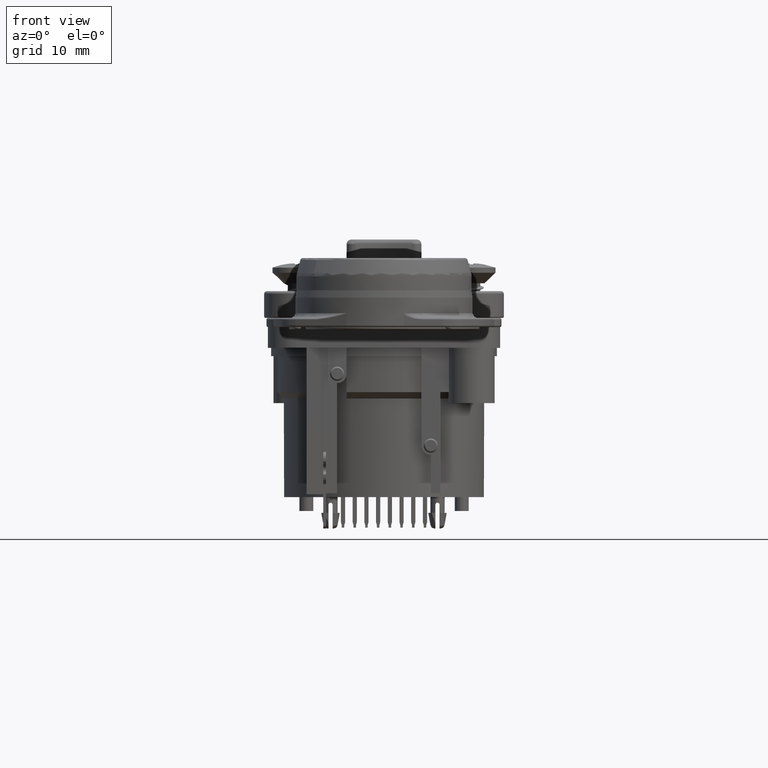
[diagram: clean part render]
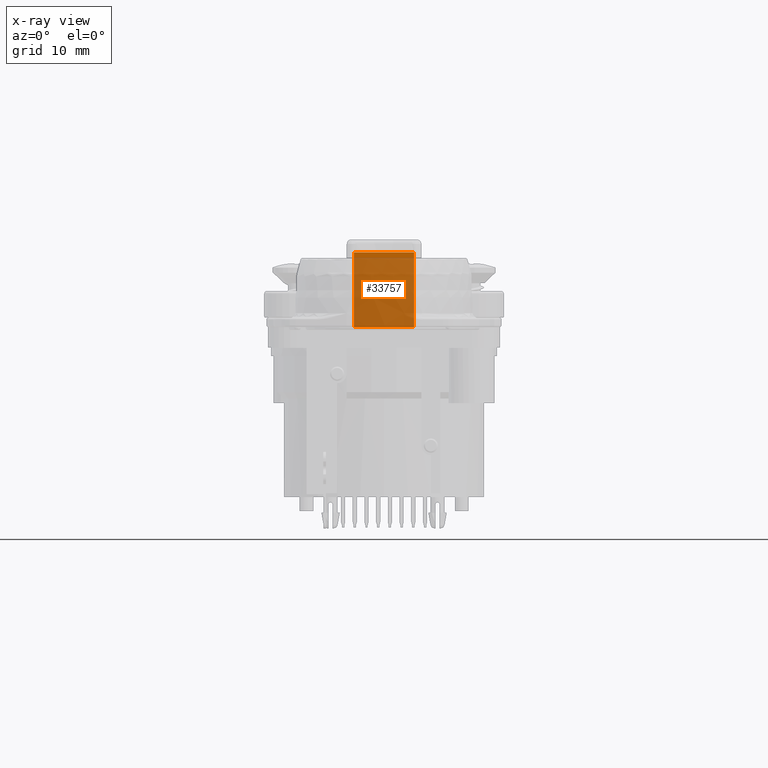
[diagram: x-ray — body ghosted, one internal face saturated and labeled with its STEP entity id]
A machine part, front view, then the same camera in x-ray: the body is ghosted and one INTERNAL B-rep face — a face not visible from any outside direction — is saturated and labeled: STEP entity #33757.
In plain terms, the highlighted planar face has unit normal (0, 1, 0).
Its self-contained STEP definition (entity closure, byte-faithful):
#4753=FACE_OUTER_BOUND('',#6616,.T.);
#6616=EDGE_LOOP('',(#31186,#31187,#31188,#31189));
#10509=LINE('',#92796,#12833);
#10510=LINE('',#92799,#12834);
#10511=LINE('',#92801,#12835);
#10512=LINE('',#92802,#12836);
#12833=VECTOR('',#42472,10.);
#12834=VECTOR('',#42475,10.);
#12835=VECTOR('',#42476,10.);
#12836=VECTOR('',#42477,10.);
#16765=VERTEX_POINT('',#92790);
#16767=VERTEX_POINT('',#92794);
#16768=VERTEX_POINT('',#92798);
#16769=VERTEX_POINT('',#92800);
#21577=EDGE_CURVE('',#16767,#16765,#10509,.T.);
#21578=EDGE_CURVE('',#16765,#16768,#10510,.T.);
#21579=EDGE_CURVE('',#16769,#16767,#10511,.T.);
#21580=EDGE_CURVE('',#16768,#16769,#10512,.T.);
#31186=ORIENTED_EDGE('',*,*,#21578,.F.);
#31187=ORIENTED_EDGE('',*,*,#21577,.F.);
#31188=ORIENTED_EDGE('',*,*,#21579,.F.);
#31189=ORIENTED_EDGE('',*,*,#21580,.F.);
#31992=PLANE('',#35910);
#33757=ADVANCED_FACE('',(#4753),#31992,.F.);
#35910=AXIS2_PLACEMENT_3D('',#92797,#42473,#42474);
#42472=DIRECTION('',(-1.03470426068351E-17,-8.32667268468849E-17,1.));
#42473=DIRECTION('center_axis',(2.71834567430179E-16,1.,8.32667268468849E-17));
#42474=DIRECTION('ref_axis',(-1.,2.71834567430179E-16,-1.0347042606835E-17));
#42475=DIRECTION('',(1.,-2.71834567430179E-16,1.0347042606835E-17));
#42476=DIRECTION('',(-1.,2.71834567430179E-16,-1.0347042606835E-17));
#42477=DIRECTION('',(1.03470426068351E-17,8.32667268468849E-17,-1.));
#92790=CARTESIAN_POINT('',(-3.25,14.1,10.1));
#92794=CARTESIAN_POINT('',(-3.25,14.1,2.));
#92796=CARTESIAN_POINT('',(-3.25,14.1,1.));
#92797=CARTESIAN_POINT('Origin',(3.55,14.1,1.));
#92798=CARTESIAN_POINT('',(3.25,14.1,10.1));
#92799=CARTESIAN_POINT('',(1.775,14.1,10.1));
#92800=CARTESIAN_POINT('',(3.25,14.1,2.));
#92801=CARTESIAN_POINT('',(1.775,14.1,2.));
#92802=CARTESIAN_POINT('',(3.25,14.1,1.));